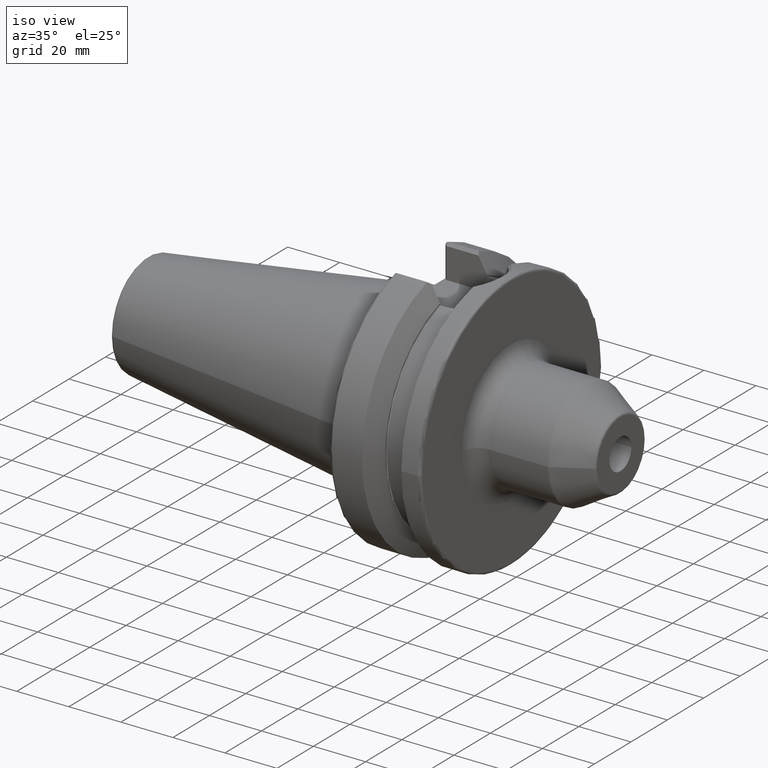
[diagram: clean part render]
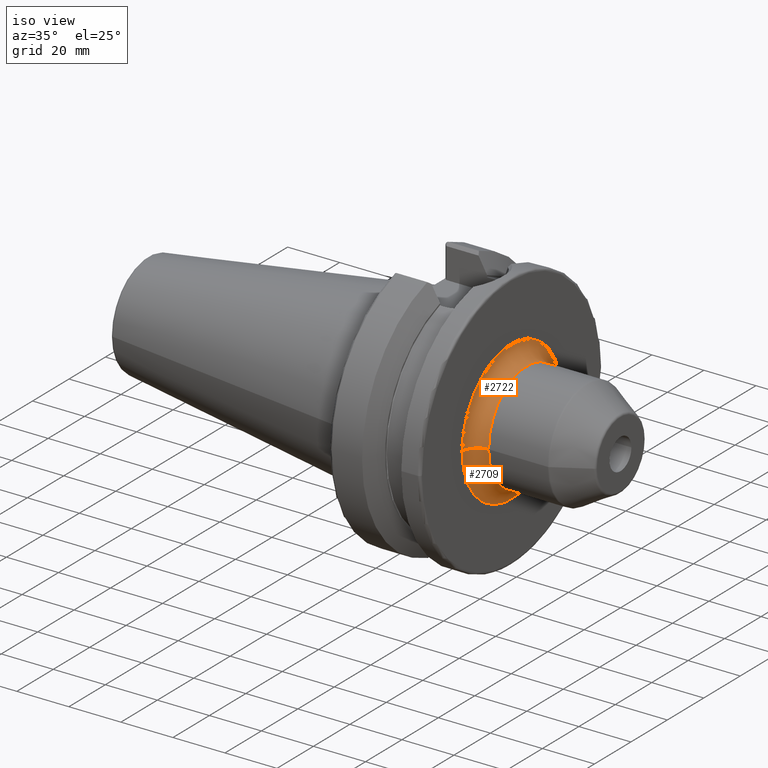
[diagram: same view with one multi-face feature highlighted, each face labeled with its STEP entity id]
A machine part, iso view. The highlighted faces form ONE feature: a constant-radius fillet chain: 2 tangent blend faces with common blend radius 6 mm. The faces share edges in the B-rep.
Their STEP definitions:
[1] entity #2722 (Torus):
#839=CARTESIAN_POINT('',(3.8E1,0.E0,0.E0));
#840=DIRECTION('',(1.E0,0.E0,0.E0));
#841=DIRECTION('',(0.E0,1.E0,0.E0));
#842=AXIS2_PLACEMENT_3D('',#839,#840,#841);
#844=CARTESIAN_POINT('',(4.4E1,-2.7E1,9.876821582822E-13));
#845=DIRECTION('',(0.E0,-3.658098129966E-14,-1.E0));
#846=DIRECTION('',(-1.E0,1.006602208993E-14,0.E0));
#847=AXIS2_PLACEMENT_3D('',#844,#845,#846);
#849=CARTESIAN_POINT('',(4.4E1,2.7E1,-9.910405829316E-13));
#850=DIRECTION('',(0.E0,3.670501402819E-14,1.E0));
#851=DIRECTION('',(-1.E0,-1.006602208993E-14,0.E0));
#852=AXIS2_PLACEMENT_3D('',#849,#850,#851);
#859=CARTESIAN_POINT('',(4.4E1,0.E0,0.E0));
#860=DIRECTION('',(1.E0,0.E0,0.E0));
#861=DIRECTION('',(0.E0,1.E0,0.E0));
#862=AXIS2_PLACEMENT_3D('',#859,#860,#861);
#1555=CARTESIAN_POINT('',(3.8E1,-2.7E1,0.E0));
#1556=CARTESIAN_POINT('',(3.8E1,2.7E1,0.E0));
#1557=VERTEX_POINT('',#1555);
#1558=VERTEX_POINT('',#1556);
#1559=CARTESIAN_POINT('',(4.4E1,-2.1E1,0.E0));
#1560=CARTESIAN_POINT('',(4.4E1,2.1E1,0.E0));
#1561=VERTEX_POINT('',#1559);
#1562=VERTEX_POINT('',#1560);
#2710=CARTESIAN_POINT('',(4.4E1,0.E0,0.E0));
#2711=DIRECTION('',(1.E0,0.E0,0.E0));
#2712=DIRECTION('',(0.E0,9.999731921857E-1,-7.322220282677E-3));
#2713=AXIS2_PLACEMENT_3D('',#2710,#2711,#2712);
#2714=TOROIDAL_SURFACE('',#2713,2.7E1,6.E0);
#2715=ORIENTED_EDGE('',*,*,#2690,.F.);
#2716=ORIENTED_EDGE('',*,*,#2705,.T.);
#2718=ORIENTED_EDGE('',*,*,#2717,.T.);
#2719=ORIENTED_EDGE('',*,*,#2701,.F.);
#2720=EDGE_LOOP('',(#2715,#2716,#2718,#2719));
#2721=FACE_OUTER_BOUND('',#2720,.F.);
#2722=ADVANCED_FACE('',(#2721),#2714,.F.);
#843=CIRCLE('',#842,2.7E1);
#848=CIRCLE('',#847,6.E0);
#853=CIRCLE('',#852,6.E0);
#863=CIRCLE('',#862,2.1E1);
#2690=EDGE_CURVE('',#1558,#1557,#843,.T.);
#2701=EDGE_CURVE('',#1557,#1561,#848,.T.);
#2705=EDGE_CURVE('',#1558,#1562,#853,.T.);
#2717=EDGE_CURVE('',#1562,#1561,#863,.T.);
[2] entity #2709 (Torus):
#834=CARTESIAN_POINT('',(3.8E1,0.E0,0.E0));
#835=DIRECTION('',(1.E0,0.E0,0.E0));
#836=DIRECTION('',(0.E0,-1.E0,0.E0));
#837=AXIS2_PLACEMENT_3D('',#834,#835,#836);
#844=CARTESIAN_POINT('',(4.4E1,-2.7E1,9.876821582822E-13));
#845=DIRECTION('',(0.E0,-3.658098129966E-14,-1.E0));
#846=DIRECTION('',(-1.E0,1.006602208993E-14,0.E0));
#847=AXIS2_PLACEMENT_3D('',#844,#845,#846);
#849=CARTESIAN_POINT('',(4.4E1,2.7E1,-9.910405829316E-13));
#850=DIRECTION('',(0.E0,3.670501402819E-14,1.E0));
#851=DIRECTION('',(-1.E0,-1.006602208993E-14,0.E0));
#852=AXIS2_PLACEMENT_3D('',#849,#850,#851);
#933=CARTESIAN_POINT('',(4.4E1,0.E0,0.E0));
#934=DIRECTION('',(1.E0,0.E0,0.E0));
#935=DIRECTION('',(0.E0,-1.E0,0.E0));
#936=AXIS2_PLACEMENT_3D('',#933,#934,#935);
#1555=CARTESIAN_POINT('',(3.8E1,-2.7E1,0.E0));
#1556=CARTESIAN_POINT('',(3.8E1,2.7E1,0.E0));
#1557=VERTEX_POINT('',#1555);
#1558=VERTEX_POINT('',#1556);
#1559=CARTESIAN_POINT('',(4.4E1,-2.1E1,0.E0));
#1560=CARTESIAN_POINT('',(4.4E1,2.1E1,0.E0));
#1561=VERTEX_POINT('',#1559);
#1562=VERTEX_POINT('',#1560);
#2695=CARTESIAN_POINT('',(4.4E1,0.E0,0.E0));
#2696=DIRECTION('',(1.E0,0.E0,0.E0));
#2697=DIRECTION('',(0.E0,-9.999731921857E-1,7.322220282676E-3));
#2698=AXIS2_PLACEMENT_3D('',#2695,#2696,#2697);
#2699=TOROIDAL_SURFACE('',#2698,2.7E1,6.E0);
#2700=ORIENTED_EDGE('',*,*,#2688,.F.);
#2702=ORIENTED_EDGE('',*,*,#2701,.T.);
#2704=ORIENTED_EDGE('',*,*,#2703,.T.);
#2706=ORIENTED_EDGE('',*,*,#2705,.F.);
#2707=EDGE_LOOP('',(#2700,#2702,#2704,#2706));
#2708=FACE_OUTER_BOUND('',#2707,.F.);
#2709=ADVANCED_FACE('',(#2708),#2699,.F.);
#838=CIRCLE('',#837,2.7E1);
#848=CIRCLE('',#847,6.E0);
#853=CIRCLE('',#852,6.E0);
#937=CIRCLE('',#936,2.1E1);
#2688=EDGE_CURVE('',#1557,#1558,#838,.T.);
#2701=EDGE_CURVE('',#1557,#1561,#848,.T.);
#2703=EDGE_CURVE('',#1561,#1562,#937,.T.);
#2705=EDGE_CURVE('',#1558,#1562,#853,.T.);